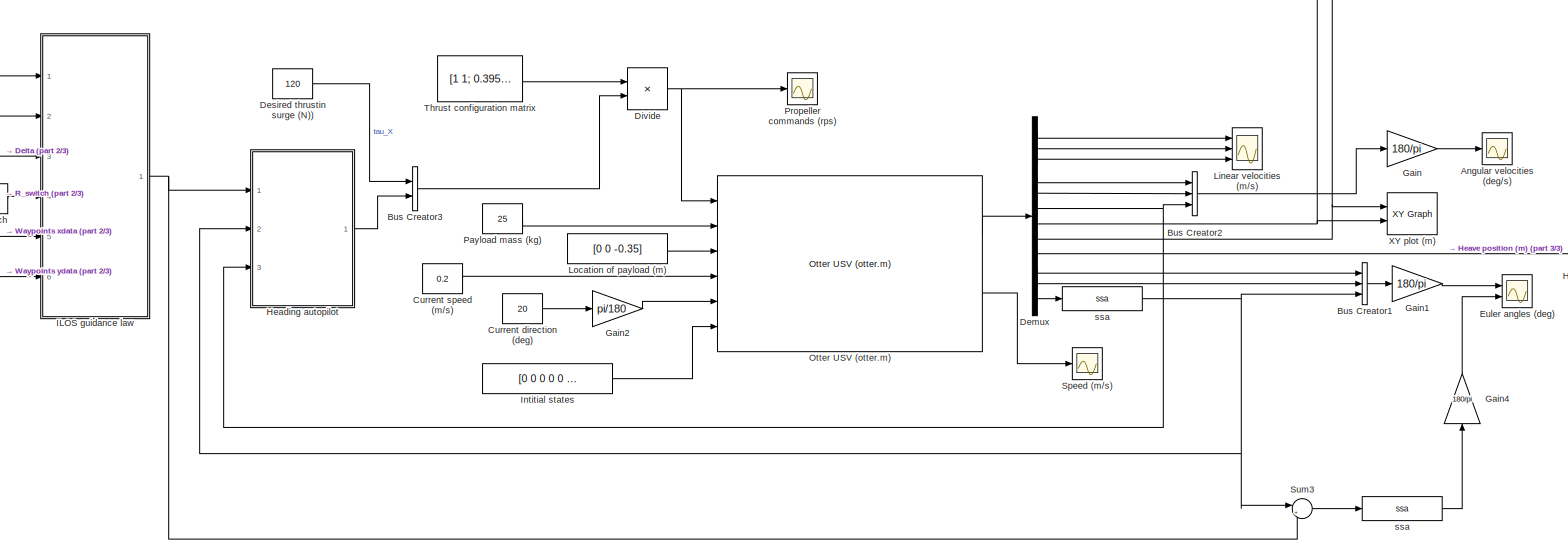
[diagram: root canvas - part 1/3, most of the canvas]
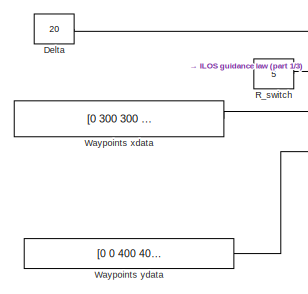
[diagram: root canvas - part 2/3, middle left region]
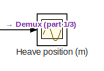
[diagram: root canvas - part 3/3, middle right region]
MODEL slx_ab2817322da8
KIND model
CONFIG AbsTol = auto
CONFIG EnableMultiTasking = off
CONFIG FixedStep = 0.05
CONFIG MaxStep = auto
CONFIG MinStep = auto
CONFIG RelTol = 1e-3
CONFIG SampleTimeConstraint = Unconstrained
CONFIG SolverName = ode4
CONFIG StartTime = 0.0
CONFIG StopTime = 2000
BLOCK [Scope] Angular velocities (deg//s)
  Floating = off
  NumInputPorts = 1
  Ports = [1]
  ScopeSpecificationString = Simulink.scopes.TimeScopeBlockCfg('CurrentConfiguration', extmgr.ConfigurationSet(extmgr.Configuration('Core','General UI',true),extmgr.Configuration('Core','Source UI',true),extmgr.Configuration('Sources','WiredSimulink',true,'DataLoggingVariableName','ScopeData3'),extmgr.Configuration('Visuals','Time Domain',true,'SerializedDisplays',{struct('MinYLimReal','-35.40217','MaxYLimReal','13.64025','YL...<+1437ch>
BLOCK [BusCreator] Bus Creator1
  DisplayOption = bar
  InheritFromInputs = on
  Inputs = 3
  Ports = [3, 1]
BLOCK [BusCreator] Bus Creator2
  DisplayOption = bar
  InheritFromInputs = on
  Inputs = 3
  Ports = [3, 1]
BLOCK [BusCreator] Bus Creator3
  DisplayOption = bar
  InheritFromInputs = on
  Inputs = 2
  Ports = [2, 1]
BLOCK [Constant] Current direction (deg)
  Value = 20
BLOCK [Constant] Current speed (m//s)
  Value = 0.2
BLOCK [Constant] Delta
  Value = 20
BLOCK [Demux] Demux
  Outputs = 12
  Ports = [1, 12]
BLOCK [Constant] Desired thrustin surge (N))
  Value = 120
BLOCK [Product] Divide
  Inputs = /*
  Multiplication = Matrix(*)
  Ports = [2, 1]
BLOCK [Scope] Euler angles (deg)
  Floating = off
  NumInputPorts = 2
  Ports = [2]
  ScopeSpecificationString = Simulink.scopes.TimeScopeBlockCfg('CurrentConfiguration', extmgr.ConfigurationSet(extmgr.Configuration('Core','General UI',true),extmgr.Configuration('Core','Source UI',true),extmgr.Configuration('Sources','WiredSimulink',true,'DataLoggingVariableName','ScopeData1'),extmgr.Configuration('Visuals','Time Domain',true,'SerializedDisplays',{struct('MinYLimReal','-224.97829','MaxYLimReal','224.88123','...<+2174ch>
BLOCK [Gain] Gain
  Gain = 180/pi
BLOCK [Gain] Gain1
  Gain = 180/pi
BLOCK [Gain] Gain2
  Gain = pi/180
BLOCK [Gain] Gain4
  Gain = 180/pi
  NameLocation = right
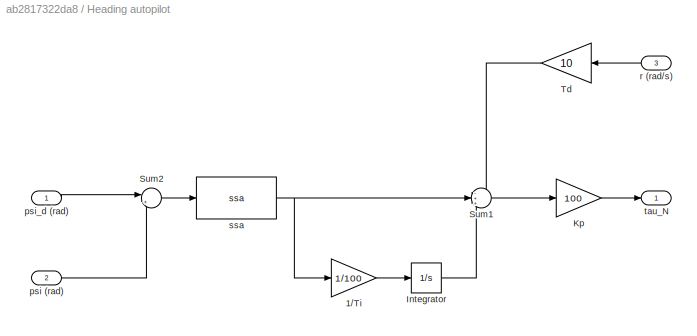
BLOCK [SubSystem] Heading autopilot
  Ports = [3, 1]
  RequestExecContextInheritance = off
BLOCK [Gain] Heading autopilot/1//Ti
  Gain = 1/100
  NameLocation = top
  OutDataTypeStr = Inherit: Same as input
  ParamDataTypeStr = Inherit: Same as input
  SaturateOnIntegerOverflow = on
BLOCK [Integrator] Heading autopilot/Integrator
  Ports = [1, 1]
BLOCK [Gain] Heading autopilot/Kp
  Gain = 100
  NameLocation = top
  OutDataTypeStr = Inherit: Same as input
  ParamDataTypeStr = Inherit: Same as input
  SaturateOnIntegerOverflow = on
BLOCK [Sum] Heading autopilot/Sum1
  InputSameDT = on
  Inputs = -++
  OutDataTypeStr = Inherit: Same as first input
  Ports = [3, 1]
  SaturateOnIntegerOverflow = on
BLOCK [Sum] Heading autopilot/Sum2
  InputSameDT = on
  Inputs = |+-
  OutDataTypeStr = Inherit: Same as first input
  Ports = [2, 1]
  SaturateOnIntegerOverflow = on
BLOCK [Gain] Heading autopilot/Td
  Gain = 10
  NameLocation = top
  OutDataTypeStr = Inherit: Same as input
  ParamDataTypeStr = Inherit: Same as input
  SaturateOnIntegerOverflow = on
BLOCK [Inport] Heading autopilot/psi (rad)
  Port = 2
BLOCK [Inport] Heading autopilot/psi_d (rad)
BLOCK [Inport] Heading autopilot/r (rad//s)
  NameLocation = top
  Port = 3
BLOCK [Reference] Heading autopilot/ssa   REF=mssSimulink/Utilities/Math Operations/ssa
  Ports = [1, 1]
  SourceBlock = mssSimulink/Utilities/Math Operations/ssa
  SourceType = SubSystem
BLOCK [Outport] Heading autopilot/tau_N
BLOCK [Scope] Heave position (m)
  Floating = off
  NumInputPorts = 1
  Ports = [1]
  ScopeSpecificationString = Simulink.scopes.TimeScopeBlockCfg('CurrentConfiguration', extmgr.ConfigurationSet(extmgr.Configuration('Core','General UI',true),extmgr.Configuration('Core','Source UI',true),extmgr.Configuration('Sources','WiredSimulink',true,'DataLoggingVariableName','ScopeData4'),extmgr.Configuration('Visuals','Time Domain',true,'SerializedDisplays',{struct('MinYLimReal','0.0303','MaxYLimReal','0.04718','YLabel...<+1498ch>
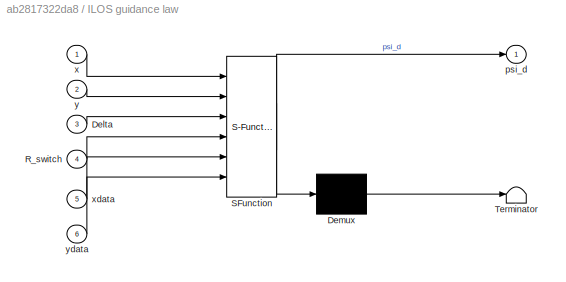
BLOCK [SubSystem] ILOS guidance law
  ErrorFcn = Stateflow.Translate.translate
  InitFcn = clear ILOSpsi
  PermitHierarchicalResolution = ExplicitOnly
  Ports = [6, 1]
  RequestExecContextInheritance = off
  SFBlockType = MATLAB Function
  TreatAsAtomicUnit = on
BLOCK [Demux] ILOS guidance law/ Demux 
  Outputs = 1
  Ports = [1, 1]
BLOCK [S-Function] ILOS guidance law/ SFunction 
  EnableBusSupport = on
  FunctionName = sf_sfun
  PortCounts = [6 2]
  Ports = [6, 2]
  SFcnIsStateOwnerBlock = off
  SFunctionDeploymentMode = off
  Tag = Stateflow S-Function 2
BLOCK [Terminator] ILOS guidance law/ Terminator 
BLOCK [Inport] ILOS guidance law/Delta
  Port = 3
BLOCK [Inport] ILOS guidance law/R_switch
  Port = 4
BLOCK [Outport] ILOS guidance law/psi_d
BLOCK [Inport] ILOS guidance law/x
BLOCK [Inport] ILOS guidance law/xdata
  Port = 5
BLOCK [Inport] ILOS guidance law/y
  Port = 2
BLOCK [Inport] ILOS guidance law/ydata
  Port = 6
BLOCK [Constant] Intitial states
  Value = [0 0 0 0 0 0 0 0 0 0 0 0]
BLOCK [Scope] Linear velocities (m//s)
  Floating = off
  NumInputPorts = 3
  Ports = [3]
  ScopeSpecificationString = Simulink.scopes.TimeScopeBlockCfg('CurrentConfiguration', extmgr.ConfigurationSet(extmgr.Configuration('Core','General UI',true),extmgr.Configuration('Core','Source UI',true),extmgr.Configuration('Sources','WiredSimulink',true,'DataLoggingVariableName','ScopeData2'),extmgr.Configuration('Visuals','Time Domain',true,'SerializedDisplays',{struct('MinYLimReal','-0.17538','MaxYLimReal','1.41349','YLab...<+3093ch>
BLOCK [Constant] Location of payload (m)
  Value = [0 0 -0.35]
BLOCK [Reference] Otter USV (otter.m)   REF=mssSimulink/Marine craft models/Otter USV (otter.m)
  Ports = [6, 2]
  SourceBlock = mssSimulink/Marine craft models/Otter USV (otter.m)
BLOCK [Constant] Payload mass (kg)
  Value = 25
BLOCK [Scope] Propeller commands (rps)
  Floating = off
  NumInputPorts = 1
  Ports = [1]
  ScopeSpecificationString = Simulink.scopes.TimeScopeBlockCfg('CurrentConfiguration', extmgr.ConfigurationSet(extmgr.Configuration('Core','General UI',true),extmgr.Configuration('Core','Source UI',true),extmgr.Configuration('Sources','WiredSimulink',true,'DataLoggingVariableName','ScopeData1'),extmgr.Configuration('Visuals','Time Domain',true,'SerializedDisplays',{struct('MinYLimReal','-295.68863','MaxYLimReal','429.6236','Y...<+1463ch>
BLOCK [Constant] R_switch
  Value = 5
BLOCK [Scope] Speed (m//s)
  Floating = off
  NumInputPorts = 1
  Ports = [1]
  ScopeSpecificationString = Simulink.scopes.TimeScopeBlockCfg('CurrentConfiguration', extmgr.ConfigurationSet(extmgr.Configuration('Core','General UI',true),extmgr.Configuration('Core','Source UI',true),extmgr.Configuration('Sources','WiredSimulink',true),extmgr.Configuration('Visuals','Time Domain',true,'SerializedDisplays',{struct('MinYLimReal','-0.18918','MaxYLimReal','1.70264','YLabelReal','','MinYLimMag','0.00000','MaxY...<+1416ch>
BLOCK [Sum] Sum3
  InputSameDT = on
  Inputs = |+-
  OutDataTypeStr = Inherit: Same as first input
  Ports = [2, 1]
  SaturateOnIntegerOverflow = on
BLOCK [Constant] Thrust configuration matrix
  Value = [1 1; 0.395 -0.395]
BLOCK [Constant] Waypoints xdata
  Value = [0 300 300 0 0 300 300 0 0 200 200]'
BLOCK [Constant] Waypoints ydata
  Value = [0 0 400 400 -100 -100 300 300 0 0 200]'
BLOCK [Reference] XY plot (m)  REF=simulink/Sinks/XY Graph
  Ports = [2]
  SourceBlock = simulink/Sinks/XY Graph
  SourceProductBaseCode = SL
  SourceType = XY scope.
BLOCK [Reference] ssa   REF=mssSimulink/Utilities/Math Operations/ssa
  Ports = [1, 1]
  SourceBlock = mssSimulink/Utilities/Math Operations/ssa
  SourceType = SubSystem
BLOCK [Reference] ssa     REF=mssSimulink/Utilities/Math Operations/ssa
  Ports = [1, 1]
  SourceBlock = mssSimulink/Utilities/Math Operations/ssa
  SourceType = SubSystem
LINE Bus Creator1:1 -> Gain1:1
LINE Bus Creator2:1 -> Gain:1
LINE Bus Creator3:1 -> Divide:2
LINE Current direction (deg):1 -> Gain2:1
LINE Current speed (m//s):1 -> Otter USV (otter.m) :4
LINE Delta:1 -> ILOS guidance law:3
LINE Demux:1 -> Linear velocities (m//s):1
LINE Demux:10 -> Bus Creator1:1
LINE Demux:11 -> Bus Creator1:2
LINE Demux:12 -> ssa   :1
LINE Demux:2 -> Linear velocities (m//s):2
LINE Demux:3 -> Linear velocities (m//s):3
LINE Demux:4 -> Bus Creator2:1
LINE Demux:5 -> Bus Creator2:2
NET Demux:6 -> Bus Creator2:3, Heading autopilot:3
NET Demux:7 -> ILOS guidance law:1, XY plot (m):2
NET Demux:8 -> ILOS guidance law:2, XY plot (m):1
LINE Demux:9 -> Heave position (m):1
LINE Desired thrustin surge (N)):1 -> Bus Creator3:1
NET Divide:1 -> Otter USV (otter.m) :1, Propeller commands (rps):1
LINE Gain1:1 -> Euler angles (deg):1
LINE Gain2:1 -> Otter USV (otter.m) :5
LINE Gain4:1 -> Euler angles (deg):2
LINE Gain:1 -> Angular velocities (deg//s):1
LINE Heading autopilot/1//Ti:1 -> Heading autopilot/Integrator:1
LINE Heading autopilot/Integrator:1 -> Heading autopilot/Sum1:3
LINE Heading autopilot/Kp:1 -> Heading autopilot/tau_N:1
LINE Heading autopilot/Sum1:1 -> Heading autopilot/Kp:1
LINE Heading autopilot/Sum2:1 -> Heading autopilot/ssa :1
LINE Heading autopilot/Td:1 -> Heading autopilot/Sum1:1
LINE Heading autopilot/psi (rad):1 -> Heading autopilot/Sum2:2
LINE Heading autopilot/psi_d (rad):1 -> Heading autopilot/Sum2:1
LINE Heading autopilot/r (rad//s):1 -> Heading autopilot/Td:1
NET Heading autopilot/ssa :1 -> Heading autopilot/1//Ti:1, Heading autopilot/Sum1:2
LINE Heading autopilot:1 -> Bus Creator3:2
NET ILOS guidance law:1 -> Heading autopilot:1, Sum3:2
LINE Intitial states:1 -> Otter USV (otter.m) :6
LINE Location of payload (m):1 -> Otter USV (otter.m) :3
LINE Otter USV (otter.m) :1 -> Demux:1
LINE Otter USV (otter.m) :2 -> Speed (m//s):1
LINE Payload mass (kg):1 -> Otter USV (otter.m) :2
LINE R_switch:1 -> ILOS guidance law:4
LINE Sum3:1 -> ssa :1
LINE Thrust configuration matrix:1 -> Divide:1
LINE Waypoints xdata:1 -> ILOS guidance law:5
LINE Waypoints ydata:1 -> ILOS guidance law:6
NET ssa   :1 -> Bus Creator1:3, Heading autopilot:2, Sum3:1
LINE ssa :1 -> Gain4:1
note: NET lines group one-source signal fan-out (src -> all destinations, sorted); 1:1 wires keep LINE
CHART ILOS guidance law states=1 transitions=1
  STATE_LABEL 'eML_blk_kernel()'
  STATE_LABEL 'SCRIPT:\nfunction psi_d = fcn(x,y,Delta,R_switch,xdata,ydata)\n\n% waypoints\nwpt.pos.x = xdata;\nwpt.pos.y = ydata;\n\n% integral gain constant Ki = kappa * Kp\nkappa = 0.1;\n\n% sample time (must be the same as value used in simulation parameters)\nh = 0.05;\n\n% ILOS guidance law\npsi_d = ILOSpsi(x,y,Delta,kappa,h,R_switch,wpt);\n\nend\n\n'
CHART  states=0 transitions=0
